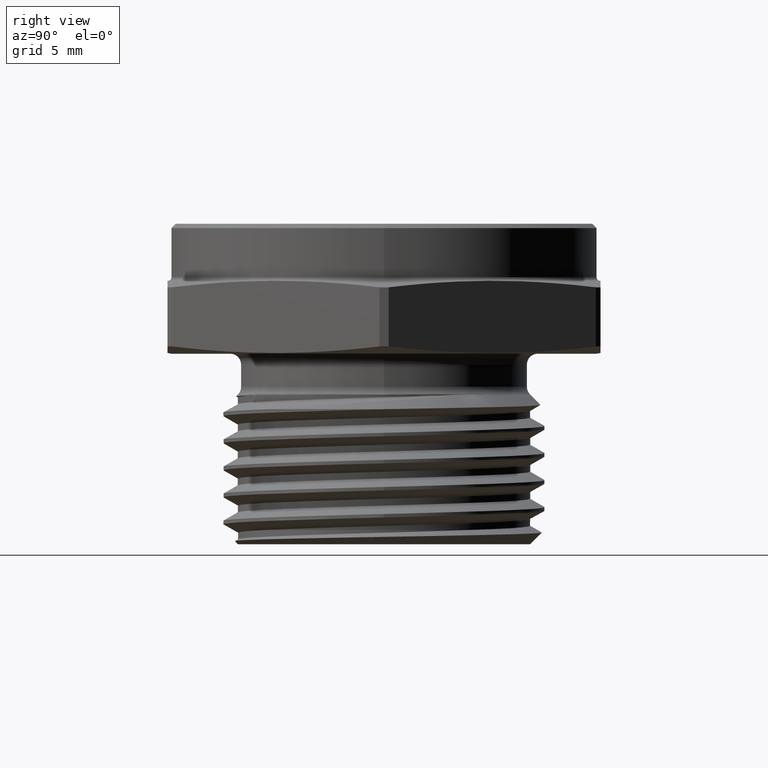
[diagram: clean part render]
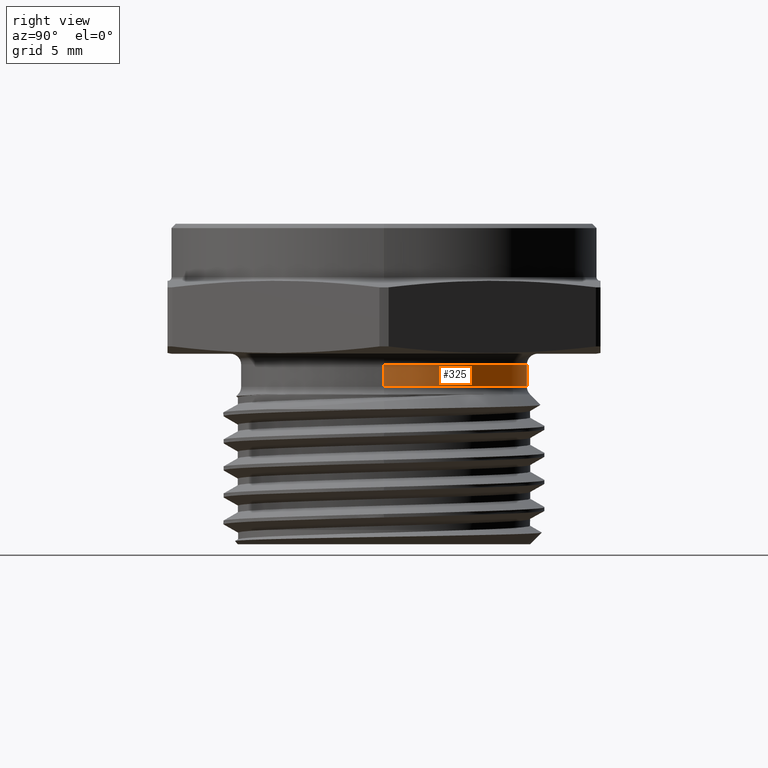
[diagram: same view with one face highlighted and labeled with its STEP entity id]
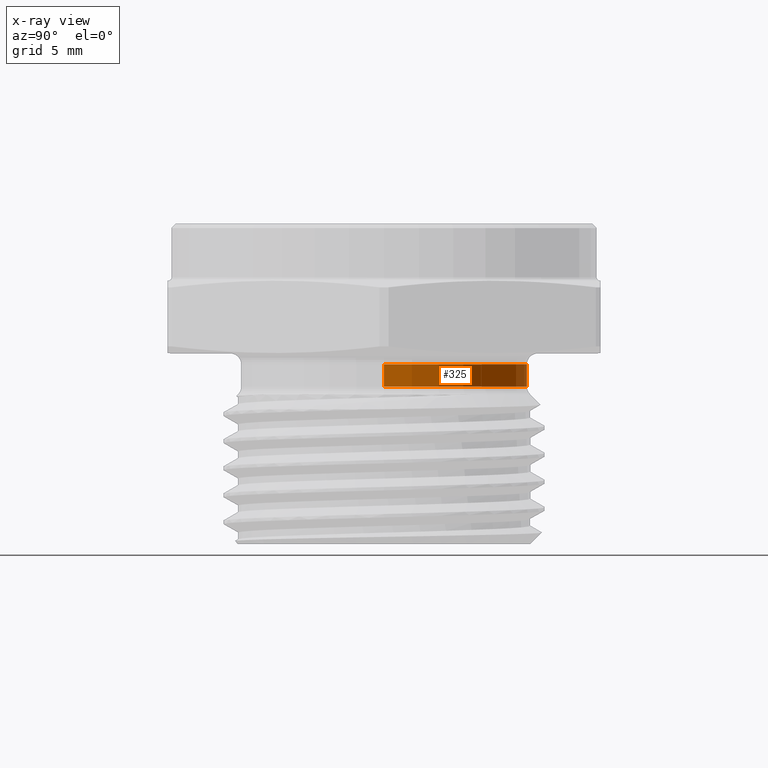
[diagram: x-ray of the same camera — body ghosted, the highlighted face saturated]
A machine part, right view. The second image highlights one B-rep face of the part: STEP entity #325.
The next image is the same camera in x-ray: the body ghosted, the highlighted face saturated — about 0% of this face is hidden behind the body in this view.
In plain terms, the highlighted cylindrical surface (partial cylindrical patch) has radius 8.382 mm, axis along (-0, -0, 1).
Its self-contained STEP definition (entity closure, byte-faithful):
#31 = EDGE_LOOP ( 'NONE', ( #2566, #2567, #2568, #2569 ) ) ;
#226 = AXIS2_PLACEMENT_3D ( 'NONE', #1265, #1261, #1262 ) ;
#248 = AXIS2_PLACEMENT_3D ( 'NONE', #438, #439, #440 ) ;
#249 = AXIS2_PLACEMENT_3D ( 'NONE', #441, #442, #443 ) ;
#325 = ADVANCED_FACE ( 'NONE', ( #2142 ), #2145, .T. ) ;
#425 = DIRECTION ( 'NONE',  ( -0.0000000000000000000, -0.0000000000000000000, 1.000000000000000000 ) ) ;
#429 = CARTESIAN_POINT ( 'NONE',  ( 0.3300000000000000200, 0.0000000000000000000, 0.0000000000000000000 ) ) ;
#436 = DIRECTION ( 'NONE',  ( -0.0000000000000000000, -0.0000000000000000000, 1.000000000000000000 ) ) ;
#437 = CARTESIAN_POINT ( 'NONE',  ( -0.3300000000000000200, 4.041334437186265900E-017, 0.0000000000000000000 ) ) ;
#438 = CARTESIAN_POINT ( 'NONE',  ( 0.0000000000000000000, 0.0000000000000000000, -0.07632233047033618000 ) ) ;
#439 = DIRECTION ( 'NONE',  ( -0.0000000000000000000, -0.0000000000000000000, 1.000000000000000000 ) ) ;
#440 = DIRECTION ( 'NONE',  ( 1.000000000000000000, 0.0000000000000000000, 0.0000000000000000000 ) ) ;
#441 = CARTESIAN_POINT ( 'NONE',  ( 0.0000000000000000000, 0.0000000000000000000, -0.02500000000000003300 ) ) ;
#442 = DIRECTION ( 'NONE',  ( -0.0000000000000000000, -0.0000000000000000000, 1.000000000000000000 ) ) ;
#443 = DIRECTION ( 'NONE',  ( 1.000000000000000000, 0.0000000000000000000, 0.0000000000000000000 ) ) ;
#1261 = DIRECTION ( 'NONE',  ( -0.0000000000000000000, -0.0000000000000000000, 1.000000000000000000 ) ) ;
#1262 = DIRECTION ( 'NONE',  ( 1.000000000000000000, 0.0000000000000000000, 0.0000000000000000000 ) ) ;
#1265 = CARTESIAN_POINT ( 'NONE',  ( 0.0000000000000000000, 0.0000000000000000000, 0.0000000000000000000 ) ) ;
#1520 = CIRCLE ( 'NONE', #248, 0.3300000000000000200 ) ;
#1524 = LINE ( 'NONE', #437, #1527 ) ;
#1526 = CIRCLE ( 'NONE', #249, 0.3300000000000000200 ) ;
#1527 = VECTOR ( 'NONE', #425, 39.37007874015748100 ) ;
#1528 = LINE ( 'NONE', #429, #1530 ) ;
#1530 = VECTOR ( 'NONE', #436, 39.37007874015748100 ) ;
#1823 = CARTESIAN_POINT ( 'NONE',  ( 0.3300000000000000200, 0.0000000000000000000, -0.07632233047033618000 ) ) ;
#1827 = CARTESIAN_POINT ( 'NONE',  ( -0.3300000000000000200, 4.041334437186265900E-017, -0.02500000000000003300 ) ) ;
#1829 = CARTESIAN_POINT ( 'NONE',  ( -0.3300000000000000200, 4.086170780050248000E-017, -0.07632233047033618000 ) ) ;
#1830 = CARTESIAN_POINT ( 'NONE',  ( 0.3300000000000000200, 0.0000000000000000000, -0.02500000000000003300 ) ) ;
#2142 = FACE_OUTER_BOUND ( 'NONE', #31, .T. ) ;
#2145 = CYLINDRICAL_SURFACE ( 'NONE', #226, 0.3300000000000000200 ) ;
#2356 = EDGE_CURVE ( 'NONE', #2481, #2487, #1520, .T. ) ;
#2357 = EDGE_CURVE ( 'NONE', #2487, #2485, #1524, .T. ) ;
#2358 = EDGE_CURVE ( 'NONE', #2488, #2485, #1526, .T. ) ;
#2359 = EDGE_CURVE ( 'NONE', #2481, #2488, #1528, .T. ) ;
#2481 = VERTEX_POINT ( 'NONE', #1823 ) ;
#2485 = VERTEX_POINT ( 'NONE', #1827 ) ;
#2487 = VERTEX_POINT ( 'NONE', #1829 ) ;
#2488 = VERTEX_POINT ( 'NONE', #1830 ) ;
#2566 = ORIENTED_EDGE ( 'NONE', *, *, #2356, .T. ) ;
#2567 = ORIENTED_EDGE ( 'NONE', *, *, #2357, .T. ) ;
#2568 = ORIENTED_EDGE ( 'NONE', *, *, #2358, .F. ) ;
#2569 = ORIENTED_EDGE ( 'NONE', *, *, #2359, .F. ) ;